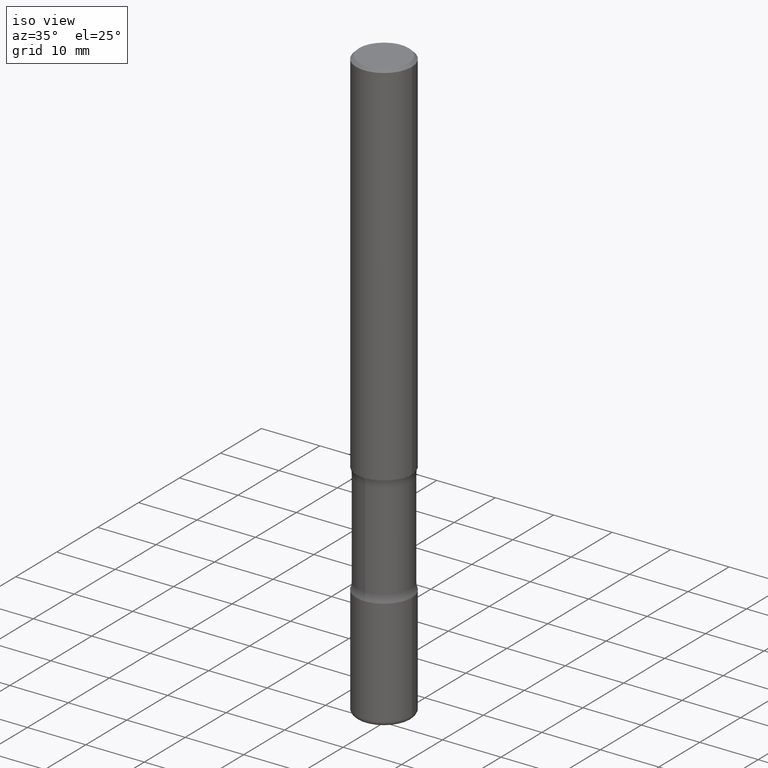
[diagram: clean part render]
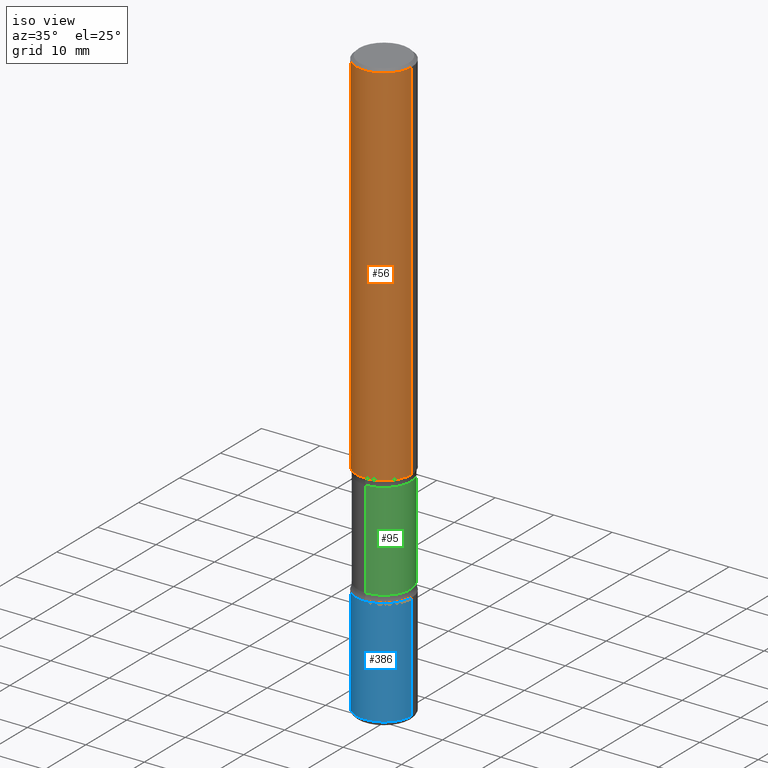
[diagram: same view with three faces highlighted in distinct colors, each labeled with its STEP entity id]
A machine part, iso view with three faces highlighted in distinct colors.
Their STEP definitions:

[orange] entity #56 — the highlighted cylindrical surface (edge-blend (fillet) strip) has radius 4.7625 mm, axis along (-0, 0, 1).
#14 = LINE ( 'NONE', #314, #324 ) ;
#23 = DIRECTION ( 'NONE',  ( 1.000000000000000000, -6.982962677686265922E-15, 0.000000000000000000 ) ) ;
#30 = EDGE_CURVE ( 'NONE', #363, #211, #172, .T. ) ;
#32 = CIRCLE ( 'NONE', #193, 0.1874999999999999167 ) ;
#56 = ADVANCED_FACE ( 'NONE', ( #310 ), #478, .T. ) ;
#61 = DIRECTION ( 'NONE',  ( -2.445468806185136877E-29, 3.491481338843145188E-15, 1.000000000000000000 ) ) ;
#70 = VERTEX_POINT ( 'NONE', #93 ) ;
#93 = CARTESIAN_POINT ( 'NONE',  ( -0.1874999999999999167, 1.239475875289311118E-15, -0.02000000000000006981 ) ) ;
#108 = CARTESIAN_POINT ( 'NONE',  ( 4.890937612370289799E-31, -6.982962677686315028E-17, -0.02000000000000006981 ) ) ;
#124 = LINE ( 'NONE', #387, #263 ) ;
#133 = DIRECTION ( 'NONE',  ( 1.000000000000000000, -6.982962677686263555E-15, 0.000000000000000000 ) ) ;
#136 = CARTESIAN_POINT ( 'NONE',  ( 0.000000000000000000, 0.000000000000000000, 0.000000000000000000 ) ) ;
#154 = DIRECTION ( 'NONE',  ( -2.445468806185136597E-29, 3.491481338843145583E-15, 1.000000000000000000 ) ) ;
#155 = ORIENTED_EDGE ( 'NONE', *, *, #177, .F. ) ;
#172 = CIRCLE ( 'NONE', #293, 0.1875000000000001110 ) ;
#177 = EDGE_CURVE ( 'NONE', #70, #371, #32, .T. ) ;
#186 = DIRECTION ( 'NONE',  ( -2.445468806185136597E-29, 3.491481338843145583E-15, 1.000000000000000000 ) ) ;
#193 = AXIS2_PLACEMENT_3D ( 'NONE', #108, #154, #23 ) ;
#211 = VERTEX_POINT ( 'NONE', #546 ) ;
#234 = EDGE_LOOP ( 'NONE', ( #425, #283, #471, #155 ) ) ;
#259 = CARTESIAN_POINT ( 'NONE',  ( 6.113672015462842613E-29, -8.728703347107864943E-15, -2.500000000000000000 ) ) ;
#263 = VECTOR ( 'NONE', #277, 39.37007874015748143 ) ;
#277 = DIRECTION ( 'NONE',  ( -2.445468806185136877E-29, 3.491481338843145188E-15, 1.000000000000000000 ) ) ;
#283 = ORIENTED_EDGE ( 'NONE', *, *, #30, .T. ) ;
#293 = AXIS2_PLACEMENT_3D ( 'NONE', #259, #186, #133 ) ;
#310 = FACE_OUTER_BOUND ( 'NONE', #234, .T. ) ;
#314 = CARTESIAN_POINT ( 'NONE',  ( -0.1875000000000000278, 1.332267629550188046E-15, -9.223003294227947991E-30 ) ) ;
#324 = VECTOR ( 'NONE', #61, 39.37007874015748143 ) ;
#330 = EDGE_CURVE ( 'NONE', #211, #371, #124, .T. ) ;
#363 = VERTEX_POINT ( 'NONE', #547 ) ;
#371 = VERTEX_POINT ( 'NONE', #372 ) ;
#372 = CARTESIAN_POINT ( 'NONE',  ( 0.1874999999999999167, -1.356173001359024677E-15, -0.02000000000000006981 ) ) ;
#387 = CARTESIAN_POINT ( 'NONE',  ( 0.1875000000000000278, -1.309305502066175008E-15, 9.142831454617381013E-30 ) ) ;
#396 = DIRECTION ( 'NONE',  ( -2.445468806185136597E-29, 3.491481338843145583E-15, 1.000000000000000000 ) ) ;
#425 = ORIENTED_EDGE ( 'NONE', *, *, #470, .F. ) ;
#430 = DIRECTION ( 'NONE',  ( 1.000000000000000000, -6.982962677686265922E-15, 4.876176775795935793E-29 ) ) ;
#470 = EDGE_CURVE ( 'NONE', #363, #70, #14, .T. ) ;
#471 = ORIENTED_EDGE ( 'NONE', *, *, #330, .T. ) ;
#478 = CYLINDRICAL_SURFACE ( 'NONE', #496, 0.1875000000000000278 ) ;
#496 = AXIS2_PLACEMENT_3D ( 'NONE', #136, #396, #430 ) ;
#546 = CARTESIAN_POINT ( 'NONE',  ( 0.1875000000000001110, -1.003800884917403995E-14, -2.500000000000000000 ) ) ;
#547 = CARTESIAN_POINT ( 'NONE',  ( -0.1875000000000000833, -3.066998857392172722E-15, -2.500000000000000000 ) ) ;

[blue] entity #386 — the highlighted cylindrical surface (edge-blend (fillet) strip) has radius 4.7625 mm, axis along (-0, 0, 1).
#1 = DIRECTION ( 'NONE',  ( -2.445468806185136597E-29, 3.491481338843145583E-15, 1.000000000000000000 ) ) ;
#2 = EDGE_CURVE ( 'NONE', #383, #272, #325, .T. ) ;
#13 = EDGE_CURVE ( 'NONE', #383, #555, #441, .T. ) ;
#41 = CARTESIAN_POINT ( 'NONE',  ( -0.1875000000000001110, 1.332267629550188637E-15, -9.223003294227953596E-30 ) ) ;
#55 = CARTESIAN_POINT ( 'NONE',  ( 9.708511160554993993E-29, -1.386118091520729054E-14, -3.970000000000000639 ) ) ;
#68 = ORIENTED_EDGE ( 'NONE', *, *, #2, .T. ) ;
#69 = CARTESIAN_POINT ( 'NONE',  ( 7.947773620101696182E-29, -1.134731435124022600E-14, -3.250000000000000444 ) ) ;
#73 = CARTESIAN_POINT ( 'NONE',  ( 0.1874999999999999722, -1.517048641727346712E-14, -3.970000000000000639 ) ) ;
#81 = DIRECTION ( 'NONE',  ( -2.445468806185136597E-29, 3.491481338843145583E-15, 1.000000000000000000 ) ) ;
#82 = AXIS2_PLACEMENT_3D ( 'NONE', #55, #1, #523 ) ;
#89 = DIRECTION ( 'NONE',  ( -2.445468806185136877E-29, 3.491481338843145188E-15, 1.000000000000000000 ) ) ;
#112 = EDGE_CURVE ( 'NONE', #272, #341, #321, .T. ) ;
#120 = CARTESIAN_POINT ( 'NONE',  ( 0.1875000000000000833, -1.265661985330640259E-14, -3.250000000000000444 ) ) ;
#122 = ORIENTED_EDGE ( 'NONE', *, *, #112, .T. ) ;
#123 = CARTESIAN_POINT ( 'NONE',  ( 0.000000000000000000, 0.000000000000000000, 0.000000000000000000 ) ) ;
#141 = EDGE_CURVE ( 'NONE', #555, #341, #224, .T. ) ;
#161 = VECTOR ( 'NONE', #89, 39.37007874015748143 ) ;
#184 = DIRECTION ( 'NONE',  ( 1.000000000000000000, -6.982962677686266711E-15, 4.876176775795935793E-29 ) ) ;
#224 = CIRCLE ( 'NONE', #528, 0.1875000000000000833 ) ;
#242 = DIRECTION ( 'NONE',  ( -2.445468806185136877E-29, 3.491481338843145188E-15, 1.000000000000000000 ) ) ;
#272 = VERTEX_POINT ( 'NONE', #73 ) ;
#291 = ORIENTED_EDGE ( 'NONE', *, *, #141, .F. ) ;
#321 = LINE ( 'NONE', #453, #541 ) ;
#325 = CIRCLE ( 'NONE', #82, 0.1875000000000001110 ) ;
#340 = FACE_OUTER_BOUND ( 'NONE', #516, .T. ) ;
#341 = VERTEX_POINT ( 'NONE', #120 ) ;
#383 = VERTEX_POINT ( 'NONE', #467 ) ;
#386 = ADVANCED_FACE ( 'NONE', ( #340 ), #423, .T. ) ;
#420 = AXIS2_PLACEMENT_3D ( 'NONE', #123, #81, #184 ) ;
#423 = CYLINDRICAL_SURFACE ( 'NONE', #420, 0.1875000000000001110 ) ;
#441 = LINE ( 'NONE', #41, #161 ) ;
#444 = DIRECTION ( 'NONE',  ( 1.000000000000000000, -6.982962677686269866E-15, 0.000000000000000000 ) ) ;
#453 = CARTESIAN_POINT ( 'NONE',  ( 0.1875000000000001110, -1.309305502066175797E-15, 9.142831454617385217E-30 ) ) ;
#467 = CARTESIAN_POINT ( 'NONE',  ( -0.1874999999999999722, -1.252891328565710269E-14, -3.970000000000000639 ) ) ;
#502 = DIRECTION ( 'NONE',  ( -2.445468806185136597E-29, 3.491481338843145583E-15, 1.000000000000000000 ) ) ;
#503 = ORIENTED_EDGE ( 'NONE', *, *, #13, .F. ) ;
#512 = CARTESIAN_POINT ( 'NONE',  ( -0.1875000000000000833, -1.127198000367356963E-14, -3.250000000000000444 ) ) ;
#516 = EDGE_LOOP ( 'NONE', ( #503, #68, #122, #291 ) ) ;
#523 = DIRECTION ( 'NONE',  ( 1.000000000000000000, -6.982962677686269077E-15, 0.000000000000000000 ) ) ;
#528 = AXIS2_PLACEMENT_3D ( 'NONE', #69, #502, #444 ) ;
#541 = VECTOR ( 'NONE', #242, 39.37007874015748143 ) ;
#555 = VERTEX_POINT ( 'NONE', #512 ) ;

[green] entity #95 — the highlighted cylindrical surface (edge-blend (fillet) strip) has radius 4.5244 mm, axis along (0, -0, -1).
#3 = DIRECTION ( 'NONE',  ( 2.558681667686983511E-29, -3.329354077496592524E-15, -1.000000000000000000 ) ) ;
#15 = AXIS2_PLACEMENT_3D ( 'NONE', #46, #3, #267 ) ;
#46 = CARTESIAN_POINT ( 'NONE',  ( 9.866784870866931853E-29, -1.384432990936266734E-14, -4.000000000000000000 ) ) ;
#63 = DIRECTION ( 'NONE',  ( 6.982962677686266711E-15, 1.000000000000000000, -3.067338098149349089E-15 ) ) ;
#74 = AXIS2_PLACEMENT_3D ( 'NONE', #94, #231, #320 ) ;
#79 = ORIENTED_EDGE ( 'NONE', *, *, #527, .F. ) ;
#83 = ORIENTED_EDGE ( 'NONE', *, *, #151, .F. ) ;
#94 = CARTESIAN_POINT ( 'NONE',  ( 7.826246762236988201E-29, -1.118918372292999451E-14, -3.202504112020091664 ) ) ;
#95 = ADVANCED_FACE ( 'NONE', ( #264 ), #388, .T. ) ;
#150 = CARTESIAN_POINT ( 'NONE',  ( 6.150289227201164007E-29, -9.008429421428009851E-15, -2.547495887979908780 ) ) ;
#151 = EDGE_CURVE ( 'NONE', #175, #205, #493, .T. ) ;
#173 = ORIENTED_EDGE ( 'NONE', *, *, #233, .T. ) ;
#175 = VERTEX_POINT ( 'NONE', #188 ) ;
#188 = CARTESIAN_POINT ( 'NONE',  ( 1.243840226962927197E-15, 0.1781249999999909572, -2.547495887979909224 ) ) ;
#195 = CARTESIAN_POINT ( 'NONE',  ( -1.222026205852954821E-15, -0.1781250000000138001, -3.999999999999999556 ) ) ;
#197 = LINE ( 'NONE', #195, #485 ) ;
#205 = VERTEX_POINT ( 'NONE', #529 ) ;
#213 = AXIS2_PLACEMENT_3D ( 'NONE', #150, #456, #63 ) ;
#231 = DIRECTION ( 'NONE',  ( 2.558681667686983511E-29, -3.329354077496592524E-15, -1.000000000000000000 ) ) ;
#233 = EDGE_CURVE ( 'NONE', #175, #424, #401, .T. ) ;
#241 = DIRECTION ( 'NONE',  ( 2.558681667686983511E-29, -3.329354077496592524E-15, -1.000000000000000000 ) ) ;
#264 = FACE_OUTER_BOUND ( 'NONE', #297, .T. ) ;
#267 = DIRECTION ( 'NONE',  ( 6.982962677686266711E-15, 1.000000000000000000, -3.067338098149349089E-15 ) ) ;
#284 = DIRECTION ( 'NONE',  ( 2.558681667686983511E-29, -3.329354077496592524E-15, -1.000000000000000000 ) ) ;
#297 = EDGE_LOOP ( 'NONE', ( #173, #419, #79, #83 ) ) ;
#317 = CARTESIAN_POINT ( 'NONE',  ( -1.254184790217547253E-15, -0.1781250000000089706, -2.547495887979908336 ) ) ;
#320 = DIRECTION ( 'NONE',  ( 6.982962677686265133E-15, 1.000000000000000000, -3.067338098149349483E-15 ) ) ;
#329 = VERTEX_POINT ( 'NONE', #375 ) ;
#355 = CARTESIAN_POINT ( 'NONE',  ( 1.243840226962964471E-15, 0.1781249999999861278, -4.000000000000000888 ) ) ;
#373 = VECTOR ( 'NONE', #284, 39.37007874015748143 ) ;
#375 = CARTESIAN_POINT ( 'NONE',  ( -1.254184790217529307E-15, -0.1781250000000111355, -3.202504112020091220 ) ) ;
#388 = CYLINDRICAL_SURFACE ( 'NONE', #15, 0.1781249999999999500 ) ;
#395 = EDGE_CURVE ( 'NONE', #424, #329, #197, .T. ) ;
#401 = CIRCLE ( 'NONE', #213, 0.1781249999999999500 ) ;
#413 = CIRCLE ( 'NONE', #74, 0.1781249999999999223 ) ;
#419 = ORIENTED_EDGE ( 'NONE', *, *, #395, .T. ) ;
#424 = VERTEX_POINT ( 'NONE', #317 ) ;
#456 = DIRECTION ( 'NONE',  ( 2.558681667686983511E-29, -3.329354077496592524E-15, -1.000000000000000000 ) ) ;
#485 = VECTOR ( 'NONE', #241, 39.37007874015748143 ) ;
#493 = LINE ( 'NONE', #355, #373 ) ;
#527 = EDGE_CURVE ( 'NONE', #205, #329, #413, .T. ) ;
#529 = CARTESIAN_POINT ( 'NONE',  ( 1.243840226962943961E-15, 0.1781249999999887368, -3.202504112020092553 ) ) ;